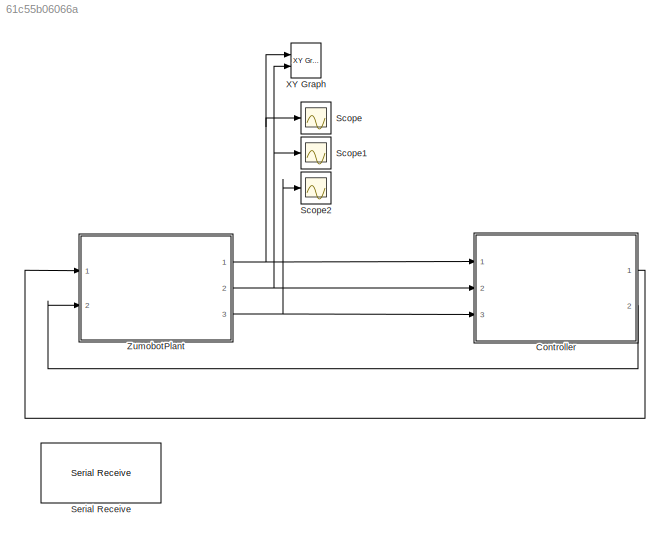
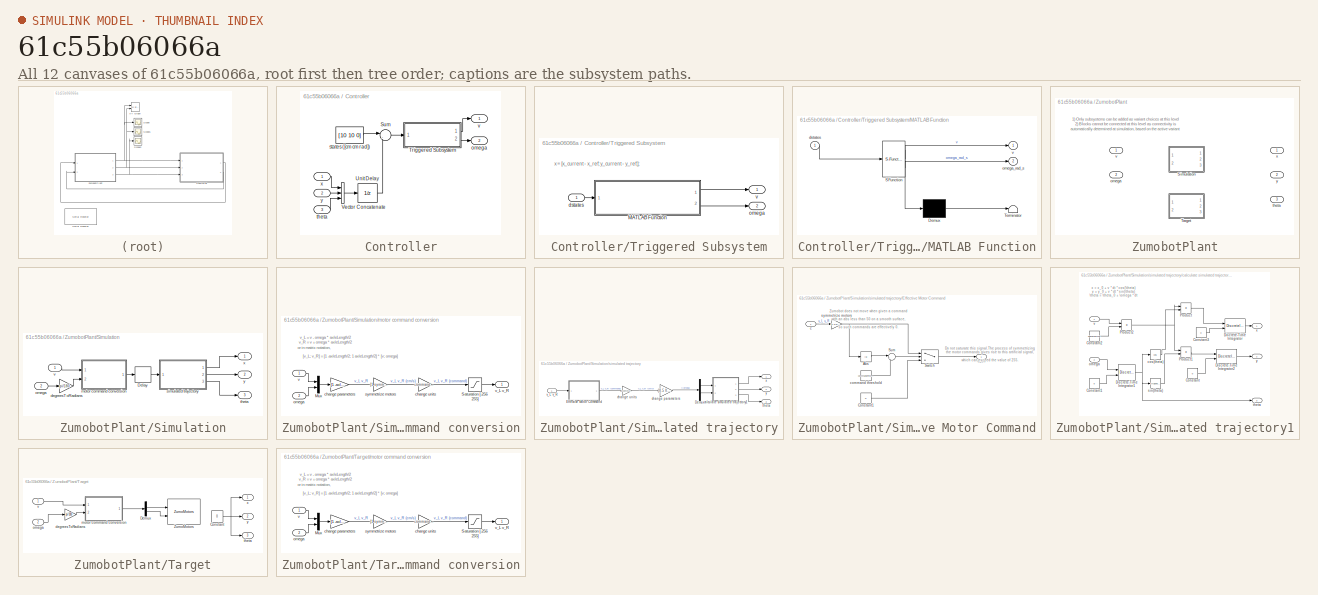
[diagram: thumbnail index - all 12 canvases of the model, root first then tree order]
MODEL slx_61c55b06066a
KIND model
WORKSPACE source: MAT-file member
WORKSPACE MCOS: class17 (value not decoded)
BLOCK [SubSystem] Controller
  Ports = [3, 2]
  RequestExecContextInheritance = off
BLOCK [Sum] Controller/Sum
  IconShape = round
  InputSameDT = off
  Inputs = |-+
  OutDataTypeStr = Inherit: Inherit via internal rule
  Ports = [2, 1]
  SaturateOnIntegerOverflow = off
BLOCK [SubSystem] Controller/Triggered Subsystem
  Ports = [1, 2]
  RequestExecContextInheritance = off
  TreatAsAtomicUnit = on
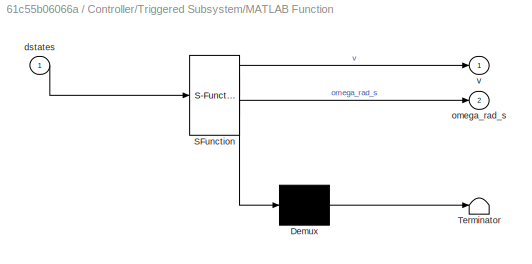
BLOCK [SubSystem] Controller/Triggered Subsystem/MATLAB Function
  ErrorFcn = Stateflow.Translate.translate
  PermitHierarchicalResolution = ExplicitOnly
  Ports = [1, 2]
  RequestExecContextInheritance = off
  SFBlockType = MATLAB Function
  TreatAsAtomicUnit = on
BLOCK [Demux] Controller/Triggered Subsystem/MATLAB Function/ Demux 
  Outputs = 1
  Ports = [1, 1]
BLOCK [S-Function] Controller/Triggered Subsystem/MATLAB Function/ SFunction 
  EnableBusSupport = on
  FunctionName = sf_sfun
  PortCounts = [1 3]
  Ports = [1, 3]
  Tag = Stateflow S-Function zumo_target 2
BLOCK [Terminator] Controller/Triggered Subsystem/MATLAB Function/ Terminator 
BLOCK [Inport] Controller/Triggered Subsystem/MATLAB Function/dstates
  IconDisplay = Port number
BLOCK [Outport] Controller/Triggered Subsystem/MATLAB Function/omega_rad_s
  IconDisplay = Port number
  Port = 2
BLOCK [Outport] Controller/Triggered Subsystem/MATLAB Function/v
  IconDisplay = Port number
BLOCK [Inport] Controller/Triggered Subsystem/dstates
  IconDisplay = Port number
BLOCK [Outport] Controller/Triggered Subsystem/omega
  IconDisplay = Port number
  Port = 2
BLOCK [Outport] Controller/Triggered Subsystem/v
  IconDisplay = Port number
BLOCK [UnitDelay] Controller/Unit Delay
  InputProcessing = Elements as channels (sample based)
  SampleTime = -1
BLOCK [Concatenate] Controller/Vector Concatenate
  NumInputs = 3
  Ports = [3, 1]
BLOCK [Outport] Controller/omega
  IconDisplay = Port number
  Port = 2
BLOCK [Constant] Controller/states ([cm cm rad])
  Value = [10 10 0]
BLOCK [Inport] Controller/theta
  IconDisplay = Port number
  Port = 3
BLOCK [Outport] Controller/v
  IconDisplay = Port number
BLOCK [Inport] Controller/x
  IconDisplay = Port number
BLOCK [Inport] Controller/y
  IconDisplay = Port number
  Port = 2
BLOCK [Scope] Scope
  DataFormat = StructureWithTime
  Floating = off
  NumInputPorts = 1
  Ports = [1]
  SampleTime = 0
  ShowLegends = off
  YMax = -0.000967084
  YMin = -0.000967084
BLOCK [Scope] Scope1
  DataFormat = StructureWithTime
  Floating = off
  NumInputPorts = 1
  Ports = [1]
  SampleTime = 0
  SaveName = ScopeData1
  ShowLegends = off
  YMax = 0.0106562
  YMin = 0.0106562
BLOCK [Scope] Scope2
  DataFormat = StructureWithTime
  Floating = off
  NumInputPorts = 1
  Ports = [1]
  SampleTime = 0
  SaveName = ScopeData2
  ShowLegends = off
  YMax = 1.6613
  YMin = 1.6613
BLOCK [Reference] Serial Receive  REF=arduinolib/Serial Receive
  Commented = on
  Ports = [0, 2]
  SourceBlock = arduinolib/Serial Receive
  SourceType = Arduino Serial Receive
  portNumber = 0
  sampleTime = 1e-3
  showOutStatus = on
BLOCK [Reference] XY Graph  REF=simulink/Sinks/XY Graph
  Ports = [2]
  SourceBlock = simulink/Sinks/XY Graph
  SourceType = XY scope.
  st = -1
  xmax = 10
  xmin = -10
  ymax = 10
  ymin = -10
BLOCK [SubSystem] ZumobotPlant
  Ports = [2, 3]
  RequestExecContextInheritance = off
  Variant = on
BLOCK [SubSystem] ZumobotPlant/Simulation
  Ports = [2, 3]
  RequestExecContextInheritance = off
  VariantControl = sim==1
BLOCK [Delay] ZumobotPlant/Simulation/Delay
  DelayLength = 1
  InitialCondition = 0
  InputPortMap = u0
  Ports = [1, 1]
BLOCK [Gain] ZumobotPlant/Simulation/degreesToRadians
  Gain = pi/180
  OutDataTypeStr = Inherit: Inherit via internal rule
  ParamDataTypeStr = Inherit: Inherit via internal rule
  SaturateOnIntegerOverflow = off
BLOCK [SubSystem] ZumobotPlant/Simulation/motor command conversion
  Ports = [2, 1]
  RequestExecContextInheritance = off
BLOCK [Mux] ZumobotPlant/Simulation/motor command conversion/Mux
  DisplayOption = bar
  Inputs = 2
  Ports = [2, 1]
BLOCK [Saturate] ZumobotPlant/Simulation/motor command conversion/Saturation [-256 255]
  InputPortMap = u0
  LowerLimit = -256
  Ports = [1, 1]
  UpperLimit = 255
BLOCK [Gain] ZumobotPlant/Simulation/motor command conversion/change parameters
  Gain = [1 -axleLength/2; 1 axleLength/2]
  Multiplication = Matrix(K*u)
  OutDataTypeStr = Inherit: Inherit via internal rule
  ParamDataTypeStr = Inherit: Inherit via internal rule
  SaturateOnIntegerOverflow = off
BLOCK [Gain] ZumobotPlant/Simulation/motor command conversion/change units
  Gain = commandPercmPerSecond
  OutDataTypeStr = Inherit: Inherit via internal rule
  ParamDataTypeStr = Inherit: Inherit via internal rule
  SaturateOnIntegerOverflow = off
BLOCK [Inport] ZumobotPlant/Simulation/motor command conversion/omega
  IconDisplay = Port number
  Port = 2
BLOCK [Gain] ZumobotPlant/Simulation/motor command conversion/symmetrize motors
  Gain = [1 symmetrizeMotors]
  OutDataTypeStr = Inherit: Inherit via internal rule
  ParamDataTypeStr = Inherit: Inherit via internal rule
  SaturateOnIntegerOverflow = off
BLOCK [Inport] ZumobotPlant/Simulation/motor command conversion/v
  IconDisplay = Port number
BLOCK [Outport] ZumobotPlant/Simulation/motor command conversion/v_L v_R
  IconDisplay = Port number
BLOCK [Inport] ZumobotPlant/Simulation/omega
  IconDisplay = Port number
  Port = 2
BLOCK [SubSystem] ZumobotPlant/Simulation/simulated trajectory
  Ports = [1, 3]
  RequestExecContextInheritance = off
BLOCK [Demux] ZumobotPlant/Simulation/simulated trajectory/Demux
  DisplayOption = bar
  Outputs = 2
  Ports = [1, 2]
BLOCK [SubSystem] ZumobotPlant/Simulation/simulated trajectory/Effective Motor Command
  Ports = [1, 1]
  RequestExecContextInheritance = off
BLOCK [Abs] ZumobotPlant/Simulation/simulated trajectory/Effective Motor Command/Abs
  SaturateOnIntegerOverflow = off
BLOCK [Constant] ZumobotPlant/Simulation/simulated trajectory/Effective Motor Command/Constant1
  Value = 0
BLOCK [Sum] ZumobotPlant/Simulation/simulated trajectory/Effective Motor Command/Sum
  IconShape = round
  InputSameDT = off
  Inputs = |+-
  OutDataTypeStr = Inherit: Inherit via internal rule
  Ports = [2, 1]
  SaturateOnIntegerOverflow = off
BLOCK [Switch] ZumobotPlant/Simulation/simulated trajectory/Effective Motor Command/Switch
  InputSameDT = off
  SaturateOnIntegerOverflow = off
BLOCK [Inport] ZumobotPlant/Simulation/simulated trajectory/Effective Motor Command/c
  IconDisplay = Port number
BLOCK [Outport] ZumobotPlant/Simulation/simulated trajectory/Effective Motor Command/c_eff
  IconDisplay = Port number
BLOCK [Constant] ZumobotPlant/Simulation/simulated trajectory/Effective Motor Command/command threshold
  Value = commandThreshold
BLOCK [Gain] ZumobotPlant/Simulation/simulated trajectory/Effective Motor Command/symmetrize motors
  Gain = [1 1/symmetrizeMotors]
  OutDataTypeStr = Inherit: Inherit via internal rule
  ParamDataTypeStr = Inherit: Inherit via internal rule
  SaturateOnIntegerOverflow = off
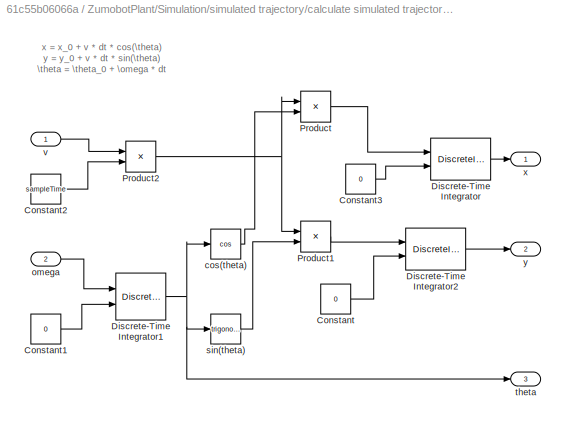
BLOCK [SubSystem] ZumobotPlant/Simulation/simulated trajectory/calculate simulated trajectory1
  Ports = [2, 3]
  RequestExecContextInheritance = off
BLOCK [Constant] ZumobotPlant/Simulation/simulated trajectory/calculate simulated trajectory1/Constant
  Value = 0
BLOCK [Constant] ZumobotPlant/Simulation/simulated trajectory/calculate simulated trajectory1/Constant1
  Value = 0
BLOCK [Constant] ZumobotPlant/Simulation/simulated trajectory/calculate simulated trajectory1/Constant2
  Value = sampleTime
BLOCK [Constant] ZumobotPlant/Simulation/simulated trajectory/calculate simulated trajectory1/Constant3
  Value = 0
BLOCK [DiscreteIntegrator] ZumobotPlant/Simulation/simulated trajectory/calculate simulated trajectory1/Discrete-Time Integrator
  ICPrevOutput = DiscIntNeverNeededParam
  ICPrevScaledInput = DiscIntNeverNeededParam
  InitialConditionSetting = State (most efficient)
  InitialConditionSource = external
  IntegratorMethod = Accumulation: Forward Euler
  Ports = [2, 1]
  SampleTime = -1
BLOCK [DiscreteIntegrator] ZumobotPlant/Simulation/simulated trajectory/calculate simulated trajectory1/Discrete-Time Integrator1
  ICPrevOutput = DiscIntNeverNeededParam
  ICPrevScaledInput = DiscIntNeverNeededParam
  InitialConditionSource = external
  Ports = [2, 1]
  SampleTime = -1
BLOCK [DiscreteIntegrator] ZumobotPlant/Simulation/simulated trajectory/calculate simulated trajectory1/Discrete-Time Integrator2
  ICPrevOutput = DiscIntNeverNeededParam
  ICPrevScaledInput = DiscIntNeverNeededParam
  InitialConditionSetting = State (most efficient)
  InitialConditionSource = external
  IntegratorMethod = Accumulation: Forward Euler
  Ports = [2, 1]
  SampleTime = -1
BLOCK [Product] ZumobotPlant/Simulation/simulated trajectory/calculate simulated trajectory1/Product
  InputSameDT = off
  OutDataTypeStr = Inherit: Inherit via internal rule
  Ports = [2, 1]
  RndMeth = Floor
  SaturateOnIntegerOverflow = off
BLOCK [Product] ZumobotPlant/Simulation/simulated trajectory/calculate simulated trajectory1/Product1
  InputSameDT = off
  OutDataTypeStr = Inherit: Inherit via internal rule
  Ports = [2, 1]
  RndMeth = Floor
  SaturateOnIntegerOverflow = off
BLOCK [Product] ZumobotPlant/Simulation/simulated trajectory/calculate simulated trajectory1/Product2
  InputSameDT = off
  OutDataTypeStr = Inherit: Inherit via internal rule
  Ports = [2, 1]
  RndMeth = Floor
  SaturateOnIntegerOverflow = off
BLOCK [Trigonometry] ZumobotPlant/Simulation/simulated trajectory/calculate simulated trajectory1/cos(theta)
  Operator = cos
  Ports = [1, 1]
BLOCK [Inport] ZumobotPlant/Simulation/simulated trajectory/calculate simulated trajectory1/omega
  IconDisplay = Port number
  Port = 2
BLOCK [Trigonometry] ZumobotPlant/Simulation/simulated trajectory/calculate simulated trajectory1/sin(theta)
  Ports = [1, 1]
BLOCK [Outport] ZumobotPlant/Simulation/simulated trajectory/calculate simulated trajectory1/theta
  IconDisplay = Port number
  Port = 3
BLOCK [Inport] ZumobotPlant/Simulation/simulated trajectory/calculate simulated trajectory1/v
  IconDisplay = Port number
BLOCK [Outport] ZumobotPlant/Simulation/simulated trajectory/calculate simulated trajectory1/x
  IconDisplay = Port number
BLOCK [Outport] ZumobotPlant/Simulation/simulated trajectory/calculate simulated trajectory1/y
  IconDisplay = Port number
  Port = 2
BLOCK [Gain] ZumobotPlant/Simulation/simulated trajectory/change parameters
  Gain = [0.5 0.5; -1/axleLength 1/axleLength]
  Multiplication = Matrix(K*u)
  OutDataTypeStr = Inherit: Inherit via internal rule
  ParamDataTypeStr = Inherit: Inherit via internal rule
  SaturateOnIntegerOverflow = off
BLOCK [Gain] ZumobotPlant/Simulation/simulated trajectory/change units
  Gain = 1/commandPercmPerSecond
  OutDataTypeStr = Inherit: Inherit via internal rule
  ParamDataTypeStr = Inherit: Inherit via internal rule
  SaturateOnIntegerOverflow = off
BLOCK [Outport] ZumobotPlant/Simulation/simulated trajectory/theta
  IconDisplay = Port number
  Port = 3
BLOCK [Inport] ZumobotPlant/Simulation/simulated trajectory/v_L v_R
  IconDisplay = Port number
BLOCK [Outport] ZumobotPlant/Simulation/simulated trajectory/x
  IconDisplay = Port number
BLOCK [Outport] ZumobotPlant/Simulation/simulated trajectory/y
  IconDisplay = Port number
  Port = 2
BLOCK [Outport] ZumobotPlant/Simulation/theta
  IconDisplay = Port number
  Port = 3
BLOCK [Inport] ZumobotPlant/Simulation/v
  IconDisplay = Port number
BLOCK [Outport] ZumobotPlant/Simulation/x
  IconDisplay = Port number
BLOCK [Outport] ZumobotPlant/Simulation/y
  IconDisplay = Port number
  Port = 2
BLOCK [SubSystem] ZumobotPlant/Target
  Ports = [2, 3]
  RequestExecContextInheritance = off
  VariantControl = sim==0
BLOCK [Constant] ZumobotPlant/Target/Constant
  Value = 0
BLOCK [Demux] ZumobotPlant/Target/Demux
  DisplayOption = bar
  Outputs = 2
  Ports = [1, 2]
BLOCK [Reference] ZumobotPlant/Target/ZumoMotors  REF=ZumoBotLib/ZumoMotors
  Ports = [2]
  SourceBlock = ZumoBotLib/ZumoMotors
  SourceType = Zumo Motors
  flipLeft = off
  flipRight = off
BLOCK [Gain] ZumobotPlant/Target/degreesToRadians
  Gain = pi/180
  OutDataTypeStr = Inherit: Inherit via internal rule
  ParamDataTypeStr = Inherit: Inherit via internal rule
  SaturateOnIntegerOverflow = off
BLOCK [SubSystem] ZumobotPlant/Target/motor command conversion
  Ports = [2, 1]
  RequestExecContextInheritance = off
BLOCK [Mux] ZumobotPlant/Target/motor command conversion/Mux
  DisplayOption = bar
  Inputs = 2
  Ports = [2, 1]
BLOCK [Saturate] ZumobotPlant/Target/motor command conversion/Saturation [-256 255]
  InputPortMap = u0
  LowerLimit = -256
  Ports = [1, 1]
  UpperLimit = 255
BLOCK [Gain] ZumobotPlant/Target/motor command conversion/change parameters
  Gain = [1 -axleLength/2; 1 axleLength/2]
  Multiplication = Matrix(K*u)
  OutDataTypeStr = Inherit: Inherit via internal rule
  ParamDataTypeStr = Inherit: Inherit via internal rule
  SaturateOnIntegerOverflow = off
BLOCK [Gain] ZumobotPlant/Target/motor command conversion/change units
  Gain = commandPercmPerSecond
  OutDataTypeStr = Inherit: Inherit via internal rule
  ParamDataTypeStr = Inherit: Inherit via internal rule
  SaturateOnIntegerOverflow = off
BLOCK [Inport] ZumobotPlant/Target/motor command conversion/omega
  IconDisplay = Port number
  Port = 2
BLOCK [Gain] ZumobotPlant/Target/motor command conversion/symmetrize motors
  Gain = [1 symmetrizeMotors]
  OutDataTypeStr = Inherit: Inherit via internal rule
  ParamDataTypeStr = Inherit: Inherit via internal rule
  SaturateOnIntegerOverflow = off
BLOCK [Inport] ZumobotPlant/Target/motor command conversion/v
  IconDisplay = Port number
BLOCK [Outport] ZumobotPlant/Target/motor command conversion/v_L v_R
  IconDisplay = Port number
BLOCK [Inport] ZumobotPlant/Target/omega
  IconDisplay = Port number
  Port = 2
BLOCK [Outport] ZumobotPlant/Target/theta
  IconDisplay = Port number
  Port = 3
BLOCK [Inport] ZumobotPlant/Target/v
  IconDisplay = Port number
BLOCK [Outport] ZumobotPlant/Target/x
  IconDisplay = Port number
BLOCK [Outport] ZumobotPlant/Target/y
  IconDisplay = Port number
  Port = 2
BLOCK [Inport] ZumobotPlant/omega
  IconDisplay = Port number
  Port = 2
BLOCK [Outport] ZumobotPlant/theta
  IconDisplay = Port number
  Port = 3
BLOCK [Inport] ZumobotPlant/v
  IconDisplay = Port number
BLOCK [Outport] ZumobotPlant/x
  IconDisplay = Port number
BLOCK [Outport] ZumobotPlant/y
  IconDisplay = Port number
  Port = 2
ANNOTATION Controller/Triggered Subsystem: x = [x_current - x_ref; y_current - y_ref;];
ANNOTATION ZumobotPlant: 1) Only subsystems can be added as variant choices at this level 2) Blocks cannot be connected at this level as connectivity is automatically determined at simulation, based on the active variant
ANNOTATION ZumobotPlant/Simulation/motor command conversion: [v_L; v_R] = [1 -axleLength/2; 1 axleLength/2] * [v; omega]
ANNOTATION ZumobotPlant/Simulation/motor command conversion: or in matrix notation,
ANNOTATION ZumobotPlant/Simulation/motor command conversion: v_L = v - omega * axleLength/2 v_R = v + omega * axleLength/2
ANNOTATION ZumobotPlant/Simulation/simulated trajectory/Effective Motor Command: Do not saturate this signal.The process of symmetrizing the motor commands gives rise to this artificial signal, which can exceed the value of 255.
ANNOTATION ZumobotPlant/Simulation/simulated trajectory/Effective Motor Command: Zumobot does not move when given a command with an abs less than 50 on a smooth surface, so such commands are effectively 0.
ANNOTATION ZumobotPlant/Simulation/simulated trajectory/calculate simulated trajectory1: x = x_0 + v * dt * cos(\theta) y = y_0 + v * dt * sin(\theta) \theta = \theta_0 + \omega * dt
ANNOTATION ZumobotPlant/Target/motor command conversion: [v_L; v_R] = [1 -axleLength/2; 1 axleLength/2] * [v; omega]
ANNOTATION ZumobotPlant/Target/motor command conversion: or in matrix notation,
ANNOTATION ZumobotPlant/Target/motor command conversion: v_L = v - omega * axleLength/2 v_R = v + omega * axleLength/2
LINE Controller/Sum:1 -> Controller/Triggered Subsystem:1
LINE Controller/Triggered Subsystem/MATLAB Function:1 -> Controller/Triggered Subsystem/v:1
LINE Controller/Triggered Subsystem/MATLAB Function:2 -> Controller/Triggered Subsystem/omega:1
LINE Controller/Triggered Subsystem/dstates:1 -> Controller/Triggered Subsystem/MATLAB Function:1
LINE Controller/Triggered Subsystem:1 -> Controller/v:1
LINE Controller/Triggered Subsystem:2 -> Controller/omega:1
LINE Controller/Unit Delay:1 -> Controller/Sum:2
LINE Controller/Vector Concatenate:1 -> Controller/Unit Delay:1
LINE Controller/states ([cm cm rad]):1 -> Controller/Sum:1
LINE Controller/theta:1 -> Controller/Vector Concatenate:3
LINE Controller/x:1 -> Controller/Vector Concatenate:1
LINE Controller/y:1 -> Controller/Vector Concatenate:2
LINE Controller:1 -> ZumobotPlant:1
LINE Controller:2 -> ZumobotPlant:2
LINE ZumobotPlant/Simulation/Delay:1 -> ZumobotPlant/Simulation/simulated trajectory:1
LINE ZumobotPlant/Simulation/degreesToRadians:1 -> ZumobotPlant/Simulation/motor command conversion:2
LINE ZumobotPlant/Simulation/motor command conversion/Mux:1 -> ZumobotPlant/Simulation/motor command conversion/change parameters:1
LINE ZumobotPlant/Simulation/motor command conversion/Saturation [-256 255]:1 -> ZumobotPlant/Simulation/motor command conversion/v_L v_R:1
LINE ZumobotPlant/Simulation/motor command conversion/change parameters:1 -> ZumobotPlant/Simulation/motor command conversion/symmetrize motors:1
LINE ZumobotPlant/Simulation/motor command conversion/change units:1 -> ZumobotPlant/Simulation/motor command conversion/Saturation [-256 255]:1
LINE ZumobotPlant/Simulation/motor command conversion/omega:1 -> ZumobotPlant/Simulation/motor command conversion/Mux:2
LINE ZumobotPlant/Simulation/motor command conversion/symmetrize motors:1 -> ZumobotPlant/Simulation/motor command conversion/change units:1
LINE ZumobotPlant/Simulation/motor command conversion/v:1 -> ZumobotPlant/Simulation/motor command conversion/Mux:1
LINE ZumobotPlant/Simulation/motor command conversion:1 -> ZumobotPlant/Simulation/Delay:1
LINE ZumobotPlant/Simulation/omega:1 -> ZumobotPlant/Simulation/degreesToRadians:1
LINE ZumobotPlant/Simulation/simulated trajectory/Demux:1 -> ZumobotPlant/Simulation/simulated trajectory/calculate simulated trajectory1:1
LINE ZumobotPlant/Simulation/simulated trajectory/Demux:2 -> ZumobotPlant/Simulation/simulated trajectory/calculate simulated trajectory1:2
LINE ZumobotPlant/Simulation/simulated trajectory/Effective Motor Command/Abs:1 -> ZumobotPlant/Simulation/simulated trajectory/Effective Motor Command/Sum:1
LINE ZumobotPlant/Simulation/simulated trajectory/Effective Motor Command/Constant1:1 -> ZumobotPlant/Simulation/simulated trajectory/Effective Motor Command/Switch:3
LINE ZumobotPlant/Simulation/simulated trajectory/Effective Motor Command/Sum:1 -> ZumobotPlant/Simulation/simulated trajectory/Effective Motor Command/Switch:2
LINE ZumobotPlant/Simulation/simulated trajectory/Effective Motor Command/Switch:1 -> ZumobotPlant/Simulation/simulated trajectory/Effective Motor Command/c_eff:1
LINE ZumobotPlant/Simulation/simulated trajectory/Effective Motor Command/c:1 -> ZumobotPlant/Simulation/simulated trajectory/Effective Motor Command/symmetrize motors:1
LINE ZumobotPlant/Simulation/simulated trajectory/Effective Motor Command/command threshold:1 -> ZumobotPlant/Simulation/simulated trajectory/Effective Motor Command/Sum:2
NET ZumobotPlant/Simulation/simulated trajectory/Effective Motor Command/symmetrize motors:1 -> ZumobotPlant/Simulation/simulated trajectory/Effective Motor Command/Abs:1, ZumobotPlant/Simulation/simulated trajectory/Effective Motor Command/Switch:1
LINE ZumobotPlant/Simulation/simulated trajectory/Effective Motor Command:1 -> ZumobotPlant/Simulation/simulated trajectory/change units:1
LINE ZumobotPlant/Simulation/simulated trajectory/calculate simulated trajectory1/Constant1:1 -> ZumobotPlant/Simulation/simulated trajectory/calculate simulated trajectory1/Discrete-Time Integrator1:2
LINE ZumobotPlant/Simulation/simulated trajectory/calculate simulated trajectory1/Constant2:1 -> ZumobotPlant/Simulation/simulated trajectory/calculate simulated trajectory1/Product2:2
LINE ZumobotPlant/Simulation/simulated trajectory/calculate simulated trajectory1/Constant3:1 -> ZumobotPlant/Simulation/simulated trajectory/calculate simulated trajectory1/Discrete-Time Integrator:2
LINE ZumobotPlant/Simulation/simulated trajectory/calculate simulated trajectory1/Constant:1 -> ZumobotPlant/Simulation/simulated trajectory/calculate simulated trajectory1/Discrete-Time Integrator2:2
NET ZumobotPlant/Simulation/simulated trajectory/calculate simulated trajectory1/Discrete-Time Integrator1:1 -> ZumobotPlant/Simulation/simulated trajectory/calculate simulated trajectory1/cos(theta):1, ZumobotPlant/Simulation/simulated trajectory/calculate simulated trajectory1/sin(theta):1, ZumobotPlant/Simulation/simulated trajectory/calculate simulated trajectory1/theta:1
LINE ZumobotPlant/Simulation/simulated trajectory/calculate simulated trajectory1/Discrete-Time Integrator2:1 -> ZumobotPlant/Simulation/simulated trajectory/calculate simulated trajectory1/y:1
LINE ZumobotPlant/Simulation/simulated trajectory/calculate simulated trajectory1/Discrete-Time Integrator:1 -> ZumobotPlant/Simulation/simulated trajectory/calculate simulated trajectory1/x:1
LINE ZumobotPlant/Simulation/simulated trajectory/calculate simulated trajectory1/Product1:1 -> ZumobotPlant/Simulation/simulated trajectory/calculate simulated trajectory1/Discrete-Time Integrator2:1
NET ZumobotPlant/Simulation/simulated trajectory/calculate simulated trajectory1/Product2:1 -> ZumobotPlant/Simulation/simulated trajectory/calculate simulated trajectory1/Product1:1, ZumobotPlant/Simulation/simulated trajectory/calculate simulated trajectory1/Product:1
LINE ZumobotPlant/Simulation/simulated trajectory/calculate simulated trajectory1/Product:1 -> ZumobotPlant/Simulation/simulated trajectory/calculate simulated trajectory1/Discrete-Time Integrator:1
LINE ZumobotPlant/Simulation/simulated trajectory/calculate simulated trajectory1/cos(theta):1 -> ZumobotPlant/Simulation/simulated trajectory/calculate simulated trajectory1/Product:2
LINE ZumobotPlant/Simulation/simulated trajectory/calculate simulated trajectory1/omega:1 -> ZumobotPlant/Simulation/simulated trajectory/calculate simulated trajectory1/Discrete-Time Integrator1:1
LINE ZumobotPlant/Simulation/simulated trajectory/calculate simulated trajectory1/sin(theta):1 -> ZumobotPlant/Simulation/simulated trajectory/calculate simulated trajectory1/Product1:2
LINE ZumobotPlant/Simulation/simulated trajectory/calculate simulated trajectory1/v:1 -> ZumobotPlant/Simulation/simulated trajectory/calculate simulated trajectory1/Product2:1
LINE ZumobotPlant/Simulation/simulated trajectory/calculate simulated trajectory1:1 -> ZumobotPlant/Simulation/simulated trajectory/x:1
LINE ZumobotPlant/Simulation/simulated trajectory/calculate simulated trajectory1:2 -> ZumobotPlant/Simulation/simulated trajectory/y:1
LINE ZumobotPlant/Simulation/simulated trajectory/calculate simulated trajectory1:3 -> ZumobotPlant/Simulation/simulated trajectory/theta:1
LINE ZumobotPlant/Simulation/simulated trajectory/change parameters:1 -> ZumobotPlant/Simulation/simulated trajectory/Demux:1
LINE ZumobotPlant/Simulation/simulated trajectory/change units:1 -> ZumobotPlant/Simulation/simulated trajectory/change parameters:1
LINE ZumobotPlant/Simulation/simulated trajectory/v_L v_R:1 -> ZumobotPlant/Simulation/simulated trajectory/Effective Motor Command:1
LINE ZumobotPlant/Simulation/simulated trajectory:1 -> ZumobotPlant/Simulation/x:1
LINE ZumobotPlant/Simulation/simulated trajectory:2 -> ZumobotPlant/Simulation/y:1
LINE ZumobotPlant/Simulation/simulated trajectory:3 -> ZumobotPlant/Simulation/theta:1
LINE ZumobotPlant/Simulation/v:1 -> ZumobotPlant/Simulation/motor command conversion:1
NET ZumobotPlant/Target/Constant:1 -> ZumobotPlant/Target/theta:1, ZumobotPlant/Target/x:1, ZumobotPlant/Target/y:1
LINE ZumobotPlant/Target/Demux:1 -> ZumobotPlant/Target/ZumoMotors:1
LINE ZumobotPlant/Target/Demux:2 -> ZumobotPlant/Target/ZumoMotors:2
LINE ZumobotPlant/Target/degreesToRadians:1 -> ZumobotPlant/Target/motor command conversion:2
LINE ZumobotPlant/Target/motor command conversion/Mux:1 -> ZumobotPlant/Target/motor command conversion/change parameters:1
LINE ZumobotPlant/Target/motor command conversion/Saturation [-256 255]:1 -> ZumobotPlant/Target/motor command conversion/v_L v_R:1
LINE ZumobotPlant/Target/motor command conversion/change parameters:1 -> ZumobotPlant/Target/motor command conversion/symmetrize motors:1
LINE ZumobotPlant/Target/motor command conversion/change units:1 -> ZumobotPlant/Target/motor command conversion/Saturation [-256 255]:1
LINE ZumobotPlant/Target/motor command conversion/omega:1 -> ZumobotPlant/Target/motor command conversion/Mux:2
LINE ZumobotPlant/Target/motor command conversion/symmetrize motors:1 -> ZumobotPlant/Target/motor command conversion/change units:1
LINE ZumobotPlant/Target/motor command conversion/v:1 -> ZumobotPlant/Target/motor command conversion/Mux:1
LINE ZumobotPlant/Target/motor command conversion:1 -> ZumobotPlant/Target/Demux:1
LINE ZumobotPlant/Target/omega:1 -> ZumobotPlant/Target/degreesToRadians:1
LINE ZumobotPlant/Target/v:1 -> ZumobotPlant/Target/motor command conversion:1
NET ZumobotPlant:1 -> Controller:1, Scope:1, XY Graph:1
NET ZumobotPlant:2 -> Controller:2, Scope1:1, XY Graph:2
NET ZumobotPlant:3 -> Controller:3, Scope2:1
note: NET lines group one-source signal fan-out (src -> all destinations, sorted); 1:1 wires keep LINE
